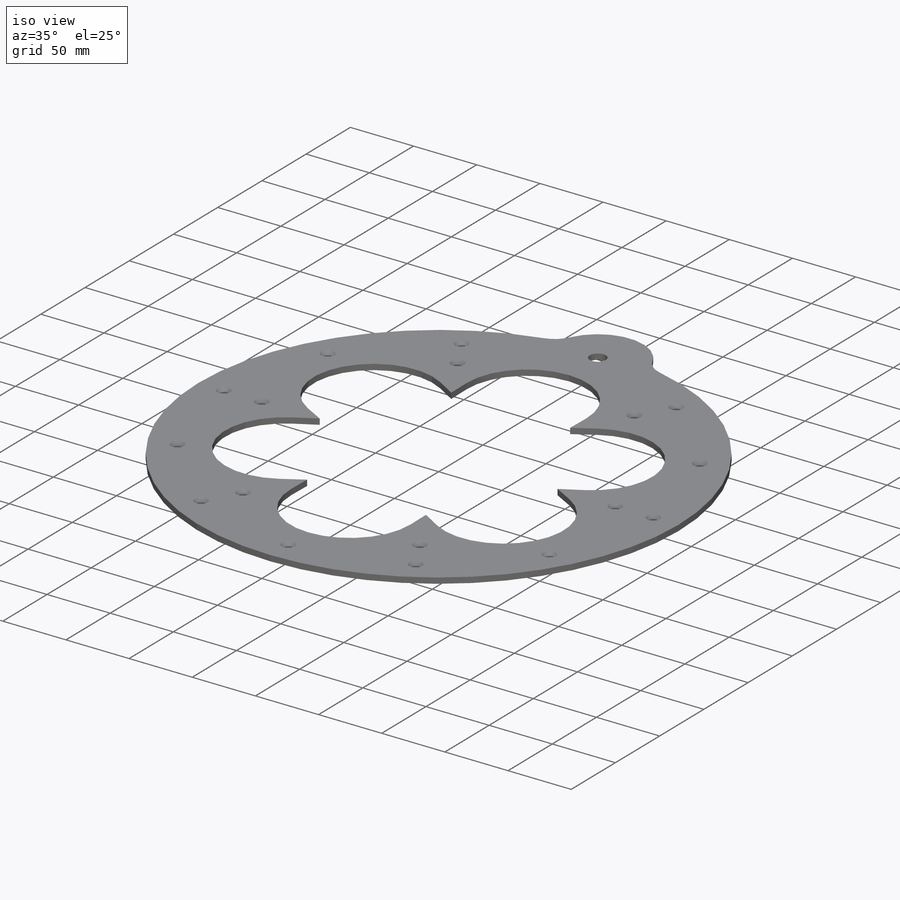
[diagram: iso view]
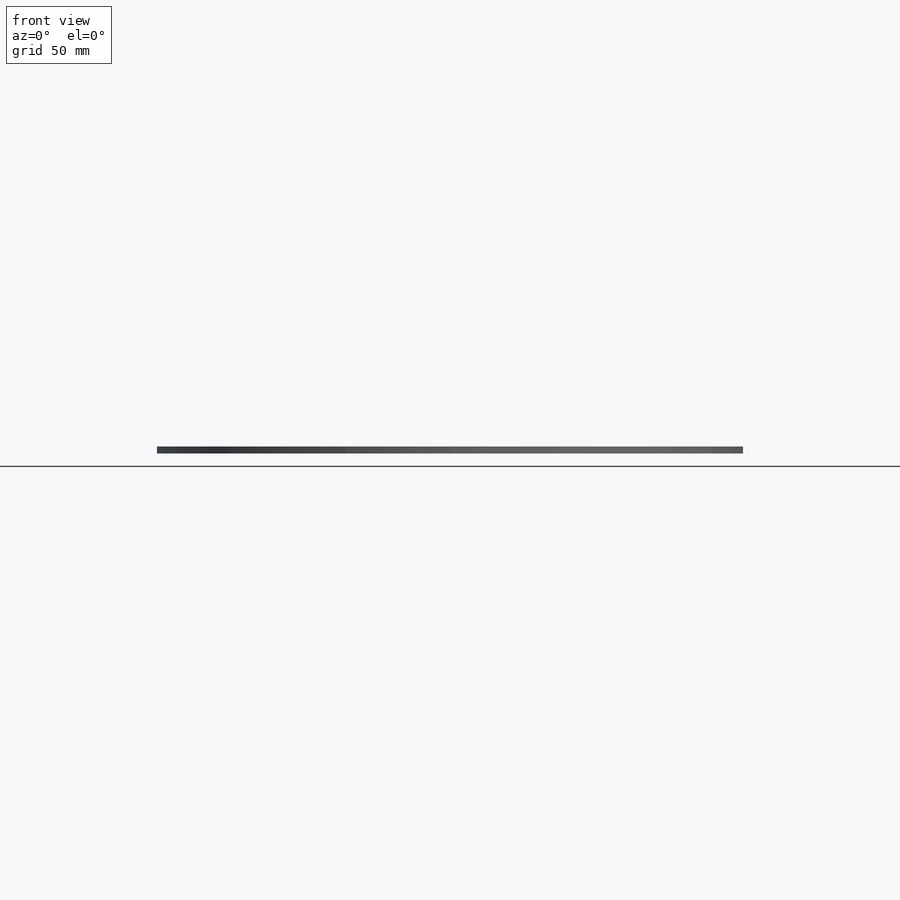
[diagram: front view]
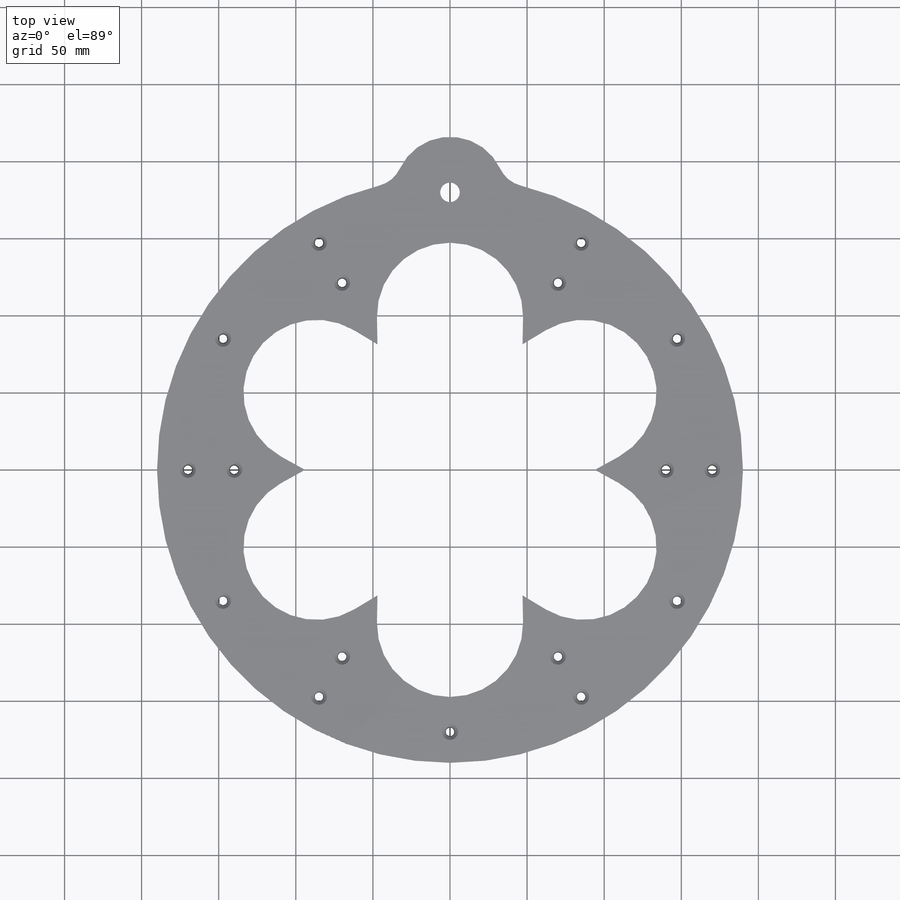
[diagram: top view]
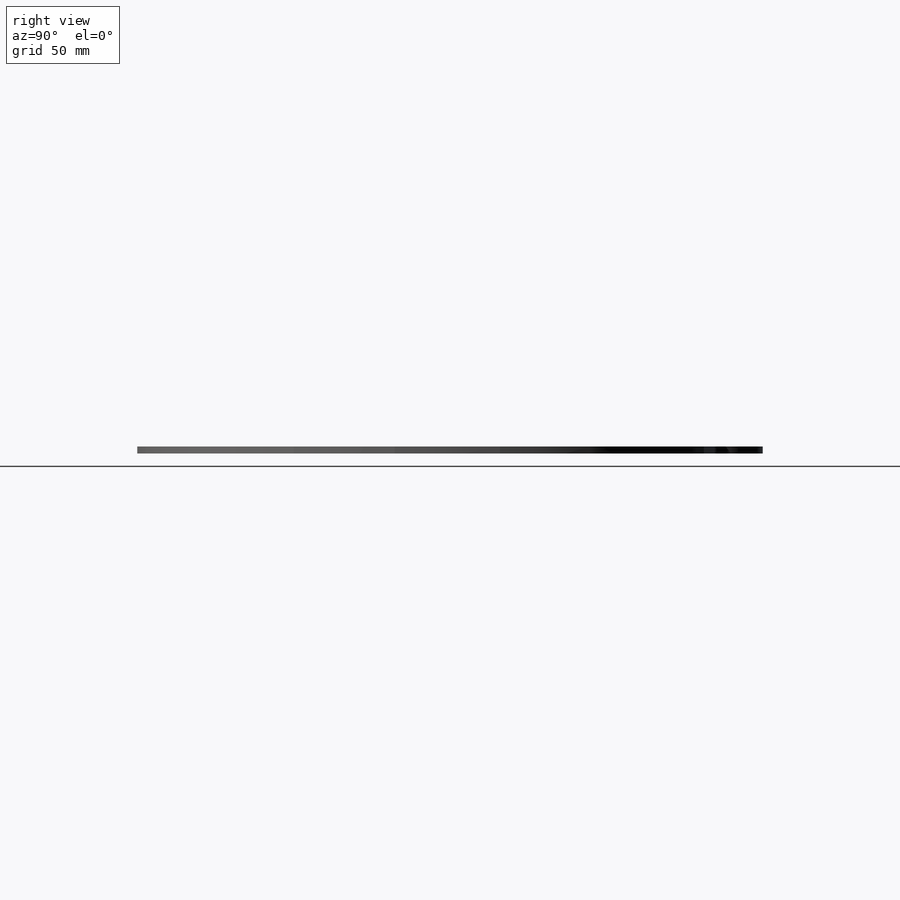
[diagram: right view]
SOLIDWORKS PART (.sldprt)
format: sldprt  version: not decoded by parser v0  size: 516,096 bytes
history: native  units: mm
features: sketch x8, hole x2, pattern_circular x2, material x1, extrude x1, plane x1, cut_extrude x1 (+13 scaffold rows collapsed)
feature tree (29):
  scaffold x13  (default folders/planes/origin — collapsed)
  material  "Material <not specified>"
  sketch  "Sketch5"  dims[c1.D1=95.0mm c1.D2=~80.415174mm c1.D3=~87.503574mm c2.D1=~16.043128mm c2.D2=~148.816294mm c3.D1=380.0mm c3.D4=20.0mm c3.D2=8.0mm c3.D3=4.0mm c4.D1=5.0mm c4.D2=5.0mm c4.D3=5.0mm c4.D4=5.0mm c4.D5=5.0mm c5.D1=7.0mm c5.D2=3.5mm c5.D3=3.5mm c5.D4=4.0mm c5.D5=4.0mm c5.D6=4.0mm c5.D7=4.0mm c6.D3=4.0mm c6.D4=4.0mm c6.D5=4.0mm c6.D6=4.0mm c6.D2=4.0mm c7.D3=4.0mm c7.D4=4.0mm c7.D5=4.0mm c7.D1=1.0mm c8.D3=2.0mm c8.D1=4.0mm]
  sketch  "Sketch6"
  extrude  "Boss-Extrude3"  Depth=4.5mm
  hole  "CSK for M5 Flat Head Machine Screw1"  Diameter=5.5mm Depth=4.5mm
  sketch  "Sketch8"  dims[D1=0.0mm D2=170.0mm]
  sketch  "Sketch7"  dims[hole-wizard template sketch: 55 standard entries collapsed; hole parameters kept: c17.Thru Hole Depth=4.5mm c17.Near C'Sink Dia.=10.4mm c17.D4=~3.666174mm c17.Near C'Sink Angle=90.0deg]
  pattern_circular  "CirPattern1"  Count=12 Angle=30deg
  hole  "CSK for M5 Flat Head Machine Screw2"  Diameter=5.5mm Depth=4.5mm
  sketch  "Sketch10"  dims[D1=0.0mm D2=140.0mm]
  sketch  "Sketch9"  dims[hole-wizard template sketch: 55 standard entries collapsed; hole parameters kept: c17.Thru Hole Depth=4.5mm c17.Near C'Sink Dia.=10.4mm c17.D4=~3.666174mm c17.Near C'Sink Angle=90.0deg]
  pattern_circular  "CirPattern2"  Count=6 Angle=360deg
  plane  "Plane1"  Offset=0mm
  sketch  "Sketch11"
  cut_extrude  "Cut-Extrude1"  Depth=10mm
  sketch  "keepThisTemplate"  dims[c1.D1=95.0mm c1.D2=~80.415174mm c1.D3=~87.503574mm c2.D1=~16.043128mm c2.D2=~148.816294mm c3.D1=87.5mm c3.D2=8.0mm c3.D3=4.0mm c4.D1=5.0mm c4.D2=5.0mm c4.D3=5.0mm c4.D4=5.0mm c4.D5=5.0mm c5.D1=7.0mm c5.D2=3.5mm c5.D3=3.5mm c5.D4=4.0mm c5.D5=4.0mm c5.D6=4.0mm c5.D7=4.0mm c6.D3=4.0mm c6.D4=4.0mm c6.D5=4.0mm c6.D6=4.0mm c6.D2=4.0mm c7.D3=4.0mm c7.D4=4.0mm c7.D5=4.0mm c7.D1=20.0mm c7.D2=7.5mm c8.D1=6.0 c8.D3=6.0]
decode coverage: 12 of 14 modeling features carry decoded parameters
note: ~ marks probable driven/reference dimensions
note: suppression state not decoded; provenance and decode notes live in map.json
